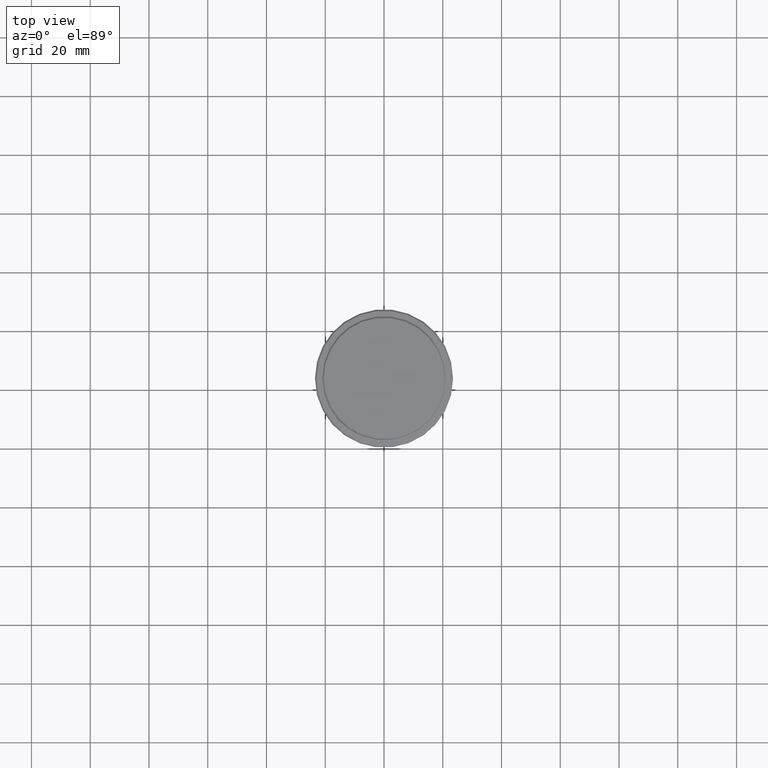
[diagram: clean part render]
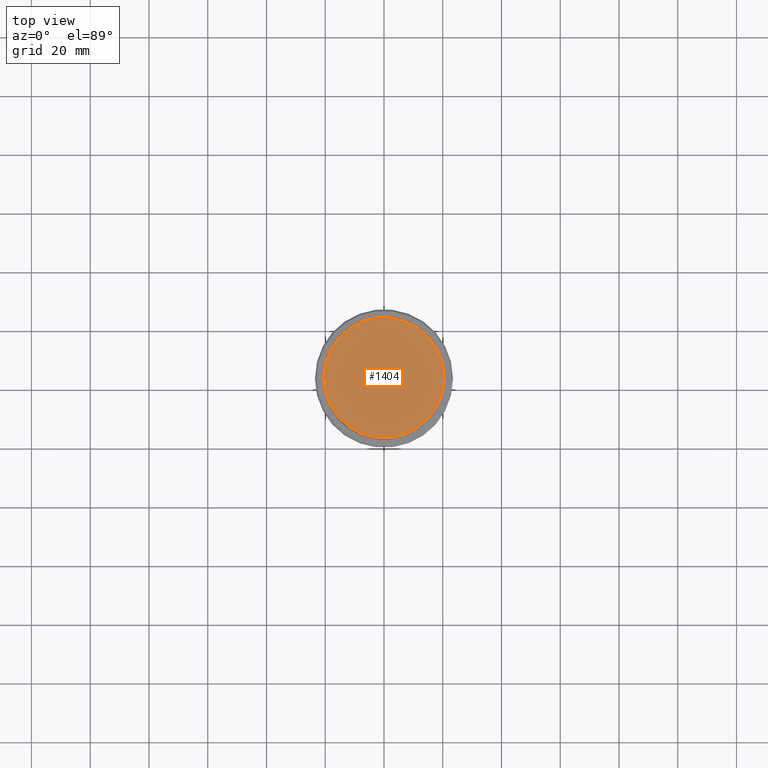
[diagram: same view with one face highlighted and labeled with its STEP entity id]
A machine part, top view. The second image highlights one B-rep face of the part: STEP entity #1404.
In plain terms, the highlighted planar face has unit normal (0, -0, 1).
Its self-contained STEP definition (entity closure, byte-faithful):
#111 = AXIS2_PLACEMENT_3D ( 'NONE', #246, #798, #269 ) ;
#118 = FACE_OUTER_BOUND ( 'NONE', #1268, .T. ) ;
#191 = CARTESIAN_POINT ( 'NONE',  ( 0.000000000000000000, 0.000000000000000000, 0.000000000000000000 ) ) ;
#246 = CARTESIAN_POINT ( 'NONE',  ( 0.000000000000000000, 0.000000000000000000, 0.000000000000000000 ) ) ;
#248 = DIRECTION ( 'NONE',  ( 0.000000000000000000, -0.000000000000000000, 1.000000000000000000 ) ) ;
#261 = ORIENTED_EDGE ( 'NONE', *, *, #682, .T. ) ;
#269 = DIRECTION ( 'NONE',  ( 1.000000000000000000, 0.000000000000000000, 0.000000000000000000 ) ) ;
#304 = DIRECTION ( 'NONE',  ( -0.000000000000000000, -0.000000000000000000, 1.000000000000000000 ) ) ;
#342 = DIRECTION ( 'NONE',  ( 1.000000000000000000, 0.000000000000000000, 0.000000000000000000 ) ) ;
#449 = EDGE_CURVE ( 'NONE', #1087, #1346, #496, .T. ) ;
#496 = CIRCLE ( 'NONE', #808, 20.50000000000001776 ) ;
#540 = AXIS2_PLACEMENT_3D ( 'NONE', #800, #248, #342 ) ;
#590 = PLANE ( 'NONE',  #540 ) ;
#682 = EDGE_CURVE ( 'NONE', #1346, #1087, #699, .T. ) ;
#699 = CIRCLE ( 'NONE', #111, 20.50000000000001776 ) ;
#703 = CARTESIAN_POINT ( 'NONE',  ( 20.50000000000001776, 2.541142108230758663E-15, 0.000000000000000000 ) ) ;
#798 = DIRECTION ( 'NONE',  ( -0.000000000000000000, -0.000000000000000000, 1.000000000000000000 ) ) ;
#800 = CARTESIAN_POINT ( 'NONE',  ( 0.000000000000000000, 0.000000000000000000, 0.000000000000000000 ) ) ;
#808 = AXIS2_PLACEMENT_3D ( 'NONE', #191, #304, #1072 ) ;
#1072 = DIRECTION ( 'NONE',  ( 1.000000000000000000, 0.000000000000000000, 0.000000000000000000 ) ) ;
#1087 = VERTEX_POINT ( 'NONE', #703 ) ;
#1240 = CARTESIAN_POINT ( 'NONE',  ( -20.50000000000001776, 0.000000000000000000, 0.000000000000000000 ) ) ;
#1250 = ORIENTED_EDGE ( 'NONE', *, *, #449, .T. ) ;
#1268 = EDGE_LOOP ( 'NONE', ( #261, #1250 ) ) ;
#1346 = VERTEX_POINT ( 'NONE', #1240 ) ;
#1404 = ADVANCED_FACE ( 'NONE', ( #118 ), #590, .T. ) ;